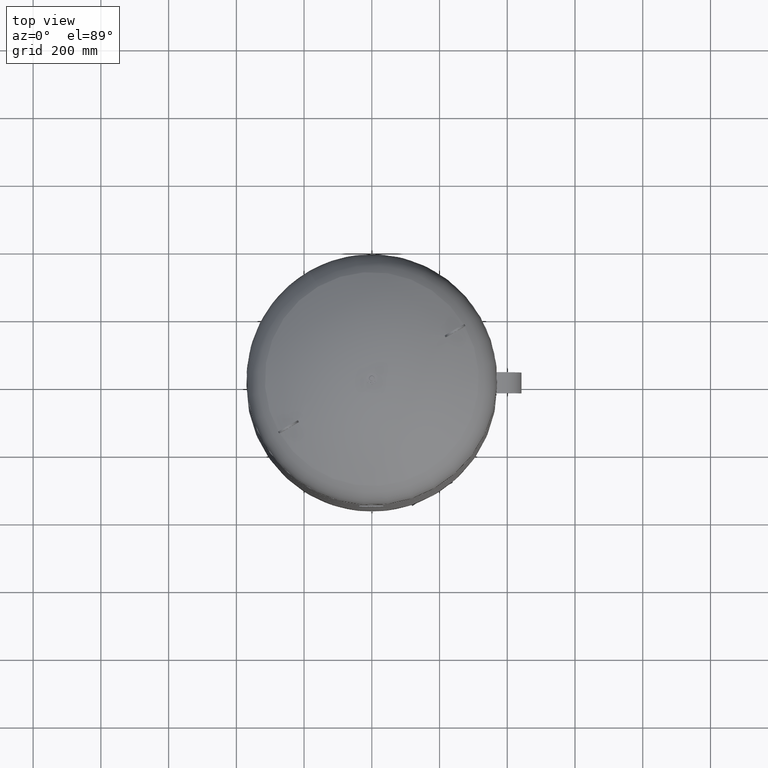
[diagram: clean part render]
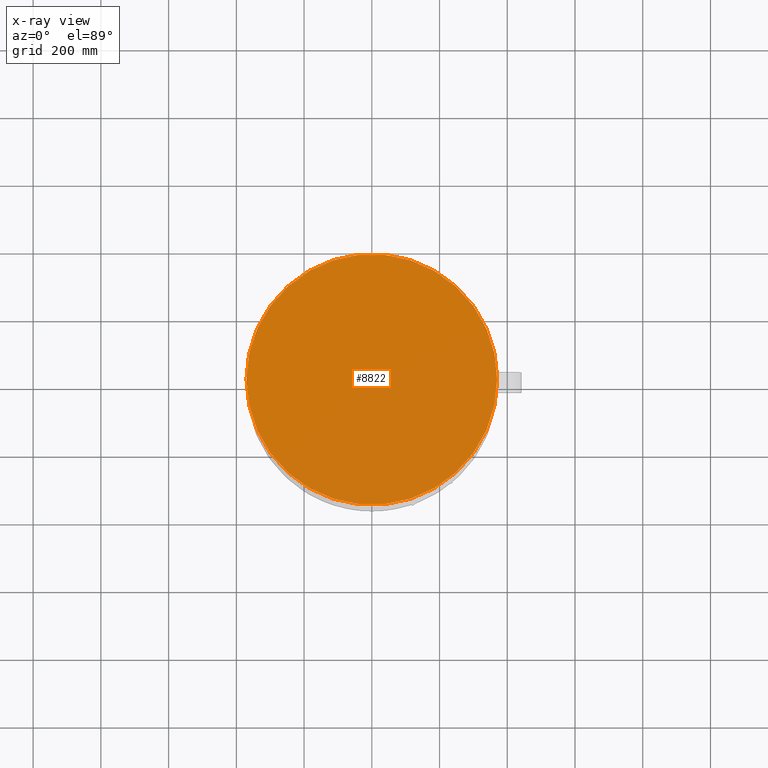
[diagram: x-ray — body ghosted, one internal face saturated and labeled with its STEP entity id]
A machine part, top view, then the same camera in x-ray: the body is ghosted and one INTERNAL B-rep face — a face not visible from any outside direction — is saturated and labeled: STEP entity #8822.
In plain terms, the highlighted planar face has unit normal (0, 0, 1).
Its self-contained STEP definition (entity closure, byte-faithful):
#8482=CARTESIAN_POINT('',(370.0,0.0,1641.0));
#8483=VERTEX_POINT('',#8482);
#8492=CARTESIAN_POINT('',(-369.999999999999890,-4.531044E-014,1641.0));
#8493=VERTEX_POINT('',#8492);
#8494=CARTESIAN_POINT('',(1.668796E-014,0.0,1641.0));
#8495=DIRECTION('',(0.0,0.0,1.0));
#8496=DIRECTION('',(1.0,0.0,0.0));
#8497=AXIS2_PLACEMENT_3D('',#8494,#8495,#8496);
#8498=CIRCLE('',#8497,370.0);
#8499=EDGE_CURVE('',#8493,#8483,#8498,.T.);
#8803=CARTESIAN_POINT('',(1.668796E-014,0.0,1641.0));
#8804=DIRECTION('',(0.0,0.0,1.0));
#8805=DIRECTION('',(1.0,0.0,0.0));
#8806=AXIS2_PLACEMENT_3D('',#8803,#8804,#8805);
#8807=CIRCLE('',#8806,370.0);
#8808=EDGE_CURVE('',#8483,#8493,#8807,.T.);
#8813=CARTESIAN_POINT('',(185.0,0.0,1641.0));
#8814=DIRECTION('',(0.0,0.0,1.0));
#8815=DIRECTION('',(1.0,0.0,0.0));
#8816=AXIS2_PLACEMENT_3D('',#8813,#8814,#8815);
#8817=PLANE('',#8816);
#8818=ORIENTED_EDGE('',*,*,#8808,.T.);
#8819=ORIENTED_EDGE('',*,*,#8499,.T.);
#8820=EDGE_LOOP('',(#8818,#8819));
#8821=FACE_OUTER_BOUND('',#8820,.T.);
#8822=ADVANCED_FACE('',(#8821),#8817,.T.);